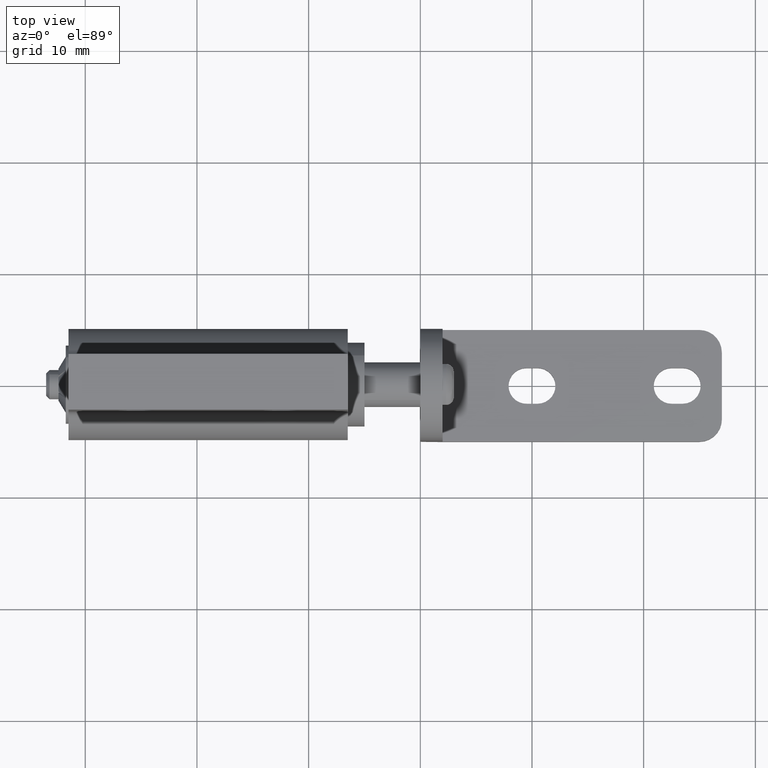
[diagram: clean part render]
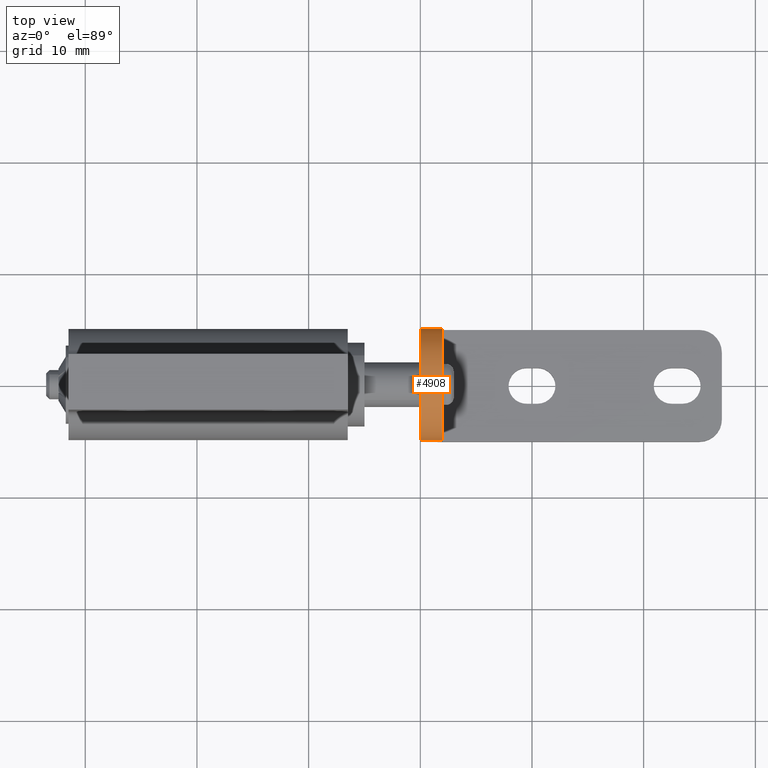
[diagram: same view with one face highlighted and labeled with its STEP entity id]
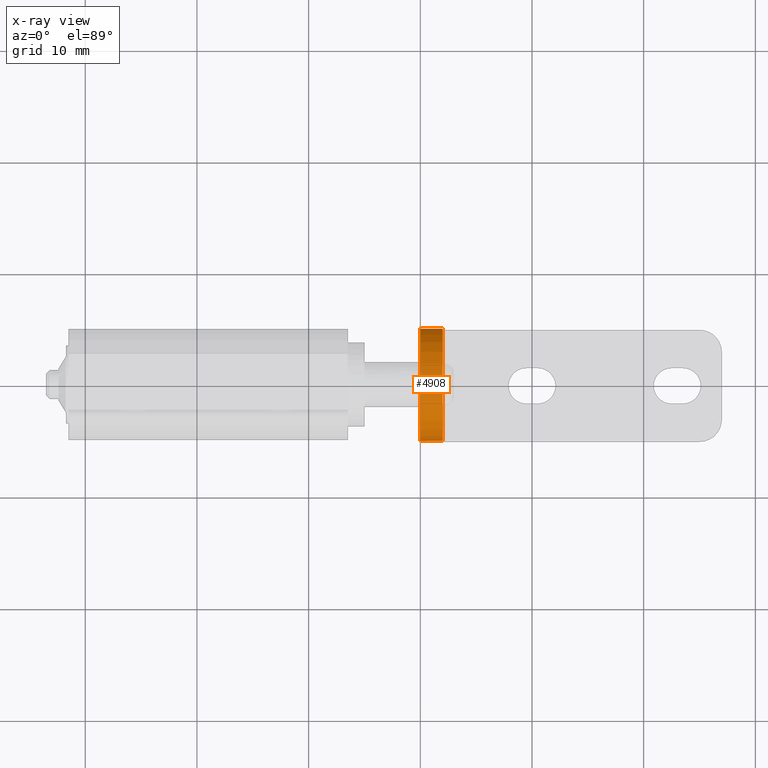
[diagram: x-ray of the same camera — body ghosted, the highlighted face saturated]
A machine part, top view. The second image highlights one B-rep face of the part: STEP entity #4908.
The next image is the same camera in x-ray: the body ghosted, the highlighted face saturated — about 0% of this face is hidden behind the body in this view.
In plain terms, the highlighted face is a freeform B-spline surface patch.
Its self-contained STEP definition (entity closure, byte-faithful):
#4027=CARTESIAN_POINT('',(0.0,5.0,8.526513E-014));
#4028=VERTEX_POINT('',#4027);
#4041=CARTESIAN_POINT('',(0.0,-5.0,8.587743E-014));
#4042=VERTEX_POINT('',#4041);
#4048=CARTESIAN_POINT('',(0.0,-0.000000498764863,5.000000000000061));
#4049=VERTEX_POINT('',#4048);
#4050=CARTESIAN_POINT('',(0.0,-0.000000498764863,5.000000000000061));
#4051=CARTESIAN_POINT('',(0.0,-0.409067665880317,5.000101435213893));
#4052=CARTESIAN_POINT('',(0.0,-1.145342097903315,4.909131914709618));
#4053=CARTESIAN_POINT('',(0.0,-2.035445075343910,4.590608916274129));
#4054=CARTESIAN_POINT('',(0.0,-2.771494937458727,4.185492358877172));
#4055=CARTESIAN_POINT('',(0.0,-3.389739196757917,3.709088718888694));
#4056=CARTESIAN_POINT('',(0.0,-3.944618617384460,3.104351007262455));
#4057=CARTESIAN_POINT('',(0.0,-4.331992449547423,2.524571706786809));
#4058=CARTESIAN_POINT('',(0.0,-4.668646480307702,1.845508098419979));
#4059=CARTESIAN_POINT('',(0.0,-4.929306533060747,1.022633649707186));
#4060=CARTESIAN_POINT('',(0.0,-5.000055190942512,0.347703616446663));
#4061=CARTESIAN_POINT('',(0.0,-5.0,8.587743E-014));
#4062=B_SPLINE_CURVE_WITH_KNOTS('',3,(#4050,#4051,#4052,#4053,#4054,#4055,#4056,#4057,#4058,#4059,#4060,#4061),.UNSPECIFIED.,.F.,.U.,(4,1,1,1,1,1,1,1,1,4),(0.000000035698840,1.227192144924922,2.208948925157737,2.822551591084126,3.742956266357026,4.540597498999302,5.276926530093138,5.829162541275084,6.810926613384368,7.854030633262425),.UNSPECIFIED.);
#4063=EDGE_CURVE('',#4049,#4042,#4062,.T.);
#4065=CARTESIAN_POINT('',(0.0,5.0,8.526513E-014));
#4066=CARTESIAN_POINT('',(0.0,5.000233494425372,0.490901488387610));
#4067=CARTESIAN_POINT('',(0.0,4.881535865287255,1.288433960065972));
#4068=CARTESIAN_POINT('',(0.0,4.502036648047429,2.220607415896738));
#4069=CARTESIAN_POINT('',(0.0,4.070116268799354,2.941242714857817));
#4070=CARTESIAN_POINT('',(0.0,3.607020452158695,3.491634058847596));
#4071=CARTESIAN_POINT('',(0.0,3.036136676423523,3.990171709710047));
#4072=CARTESIAN_POINT('',(0.0,2.422272926102771,4.400392853825203));
#4073=CARTESIAN_POINT('',(0.0,1.729389222134532,4.712609677064726));
#4074=CARTESIAN_POINT('',(0.0,0.899910191700504,4.942147911646073));
#4075=CARTESIAN_POINT('',(0.0,0.347703980753008,5.000059153937976));
#4076=CARTESIAN_POINT('',(0.0,-0.000000498764863,5.000000000000061));
#4077=B_SPLINE_CURVE_WITH_KNOTS('',3,(#4065,#4066,#4067,#4068,#4069,#4070,#4071,#4072,#4073,#4074,#4075,#4076),.UNSPECIFIED.,.F.,.U.,(4,1,1,1,1,1,1,1,1,4),(0.000000035524688,1.472624917048036,2.393029953969656,3.006627370509865,3.988365285685613,4.540597823814975,5.276926908040331,6.197324508480054,6.810927100866272,7.854031195490219),.UNSPECIFIED.);
#4078=EDGE_CURVE('',#4028,#4049,#4077,.T.);
#4831=CARTESIAN_POINT('',(2.0,-5.0,8.587743E-014));
#4832=VERTEX_POINT('',#4831);
#4838=CARTESIAN_POINT('',(2.0,-5.0,8.587743E-014));
#4839=CARTESIAN_POINT('',(0.0,-5.0,8.587743E-014));
#4840=QUASI_UNIFORM_CURVE('',1,(#4838,#4839),.UNSPECIFIED.,.F.,.U.);
#4841=EDGE_CURVE('',#4832,#4042,#4840,.T.);
#4846=CARTESIAN_POINT('',(2.050000000000000,4.999809615320855,-0.043632677491780));
#4847=CARTESIAN_POINT('',(-0.051250000000000,4.999809615320855,-0.043632677491780));
#4848=CARTESIAN_POINT('',(2.050000000000000,5.044992575535530,5.133821742354528));
#4849=CARTESIAN_POINT('',(-0.051250000000000,5.044992575535530,5.133821742354528));
#4850=CARTESIAN_POINT('',(2.050000000000000,-0.130884741539368,4.998286624877870));
#4851=CARTESIAN_POINT('',(-0.051250000000000,-0.130884741539368,4.998286624877870));
#4852=CARTESIAN_POINT('',(2.050000000000000,-5.306762058614264,4.862751507401213));
#4853=CARTESIAN_POINT('',(-0.051250000000000,-5.306762058614264,4.862751507401213));
#4854=CARTESIAN_POINT('',(2.050000000000000,-4.990673992109334,-0.305242697674198));
#4855=CARTESIAN_POINT('',(-0.051250000000000,-4.990673992109334,-0.305242697674198));
#4863=(BOUNDED_SURFACE()B_SPLINE_SURFACE(1,2,((#4846,#4848,#4850,#4852,#4854),(#4847,#4849,#4851,#4853,#4855)),.UNSPECIFIED.,.F.,.F.,.U.)B_SPLINE_SURFACE_WITH_KNOTS((2,2),(3,2,3),(0.0,2.101250000000000),(0.0,8.489496324192089,16.978992648384182),.UNSPECIFIED.)GEOMETRIC_REPRESENTATION_ITEM()RATIONAL_B_SPLINE_SURFACE(((1.0,0.694658370458997,1.0,0.694658370458997,1.0),(1.0,0.694658370458997,1.0,0.694658370458997,1.0)))REPRESENTATION_ITEM('')SURFACE());
#4864=ORIENTED_EDGE('',*,*,#4078,.T.);
#4865=ORIENTED_EDGE('',*,*,#4063,.T.);
#4866=ORIENTED_EDGE('',*,*,#4841,.F.);
#4867=CARTESIAN_POINT('',(2.0,-0.000000498764863,5.000000000000061));
#4868=VERTEX_POINT('',#4867);
#4869=CARTESIAN_POINT('',(2.0,-0.000000498764863,5.000000000000061));
#4870=CARTESIAN_POINT('',(2.0,-0.409073714213236,5.000108862993062));
#4871=CARTESIAN_POINT('',(2.000000000000001,-1.165782102190759,4.906597066404722));
#4872=CARTESIAN_POINT('',(1.999999999999994,-2.189739473730083,4.533137069644343));
#4873=CARTESIAN_POINT('',(2.000000000000009,-2.977082410033107,4.047956416411371));
#4874=CARTESIAN_POINT('',(1.999999999999973,-3.545513195965007,3.545276564499353));
#4875=CARTESIAN_POINT('',(2.000000000000061,-3.990175343327560,3.036140395063133));
#4876=CARTESIAN_POINT('',(1.999999999999893,-4.411789528952747,2.405221352958631));
#4877=CARTESIAN_POINT('',(2.000000000000061,-4.719939374064269,1.710038012422139));
#4878=CARTESIAN_POINT('',(2.000000000000005,-4.944288870620087,0.879455533030092));
#4879=CARTESIAN_POINT('',(2.000000000000014,-5.000059204101209,0.347705116600747));
#4880=CARTESIAN_POINT('',(2.0,-5.0,8.587743E-014));
#4881=B_SPLINE_CURVE_WITH_KNOTS('',3,(#4869,#4870,#4871,#4872,#4873,#4874,#4875,#4876,#4877,#4878,#4879,#4880),.UNSPECIFIED.,.F.,.U.,(4,1,1,1,1,1,1,1,1,4),(0.000000035698840,1.227192144924922,2.270309880323125,3.252074390412465,3.988365000715670,4.540597498999302,5.276926530093138,6.258685331843314,6.810926613384368,7.854030633262425),.UNSPECIFIED.);
#4882=EDGE_CURVE('',#4868,#4832,#4881,.T.);
#4883=ORIENTED_EDGE('',*,*,#4882,.F.);
#4884=CARTESIAN_POINT('',(2.0,5.0,8.526513E-014));
#4885=VERTEX_POINT('',#4884);
#4886=CARTESIAN_POINT('',(2.0,5.0,8.526513E-014));
#4887=CARTESIAN_POINT('',(2.000000000000002,5.000024747383631,0.286343225185406));
#4888=CARTESIAN_POINT('',(2.000000000000001,4.952429791308285,0.838567203190595));
#4889=CARTESIAN_POINT('',(1.999999999999996,4.753244454110124,1.613593374764875));
#4890=CARTESIAN_POINT('',(2.0,4.421966155698348,2.386445783193658));
#4891=CARTESIAN_POINT('',(2.000000000000008,3.951270860526555,3.109983269575273));
#4892=CARTESIAN_POINT('',(1.999999999999998,3.356724040718554,3.734406163775134));
#4893=CARTESIAN_POINT('',(2.000000000000002,2.736504043137125,4.206288065893470));
#4894=CARTESIAN_POINT('',(1.999999999999999,1.981906311559916,4.621695353792123));
#4895=CARTESIAN_POINT('',(2.000000000000001,1.063547071326845,4.925043147373204));
#4896=CARTESIAN_POINT('',(2.0,0.347701088901421,5.000050704045862));
#4897=CARTESIAN_POINT('',(2.0,-0.000000498764863,5.000000000000061));
#4898=B_SPLINE_CURVE_WITH_KNOTS('',3,(#4886,#4887,#4888,#4889,#4890,#4891,#4892,#4893,#4894,#4895,#4896,#4897),.UNSPECIFIED.,.F.,.U.,(4,1,1,1,1,1,1,1,1,4),(0.000000035524688,0.859030256948004,1.656709792247678,2.393029953969656,3.374784565707090,4.233794088111921,4.970119710933261,5.706444045722053,6.810927100866272,7.854031195490219),.UNSPECIFIED.);
#4899=EDGE_CURVE('',#4885,#4868,#4898,.T.);
#4900=ORIENTED_EDGE('',*,*,#4899,.F.);
#4901=CARTESIAN_POINT('',(2.0,5.0,8.526513E-014));
#4902=CARTESIAN_POINT('',(0.0,5.0,8.526513E-014));
#4903=QUASI_UNIFORM_CURVE('',1,(#4901,#4902),.UNSPECIFIED.,.F.,.U.);
#4904=EDGE_CURVE('',#4885,#4028,#4903,.T.);
#4905=ORIENTED_EDGE('',*,*,#4904,.T.);
#4906=EDGE_LOOP('',(#4864,#4865,#4866,#4883,#4900,#4905));
#4907=FACE_OUTER_BOUND('',#4906,.T.);
#4908=ADVANCED_FACE('',(#4907),#4863,.T.);